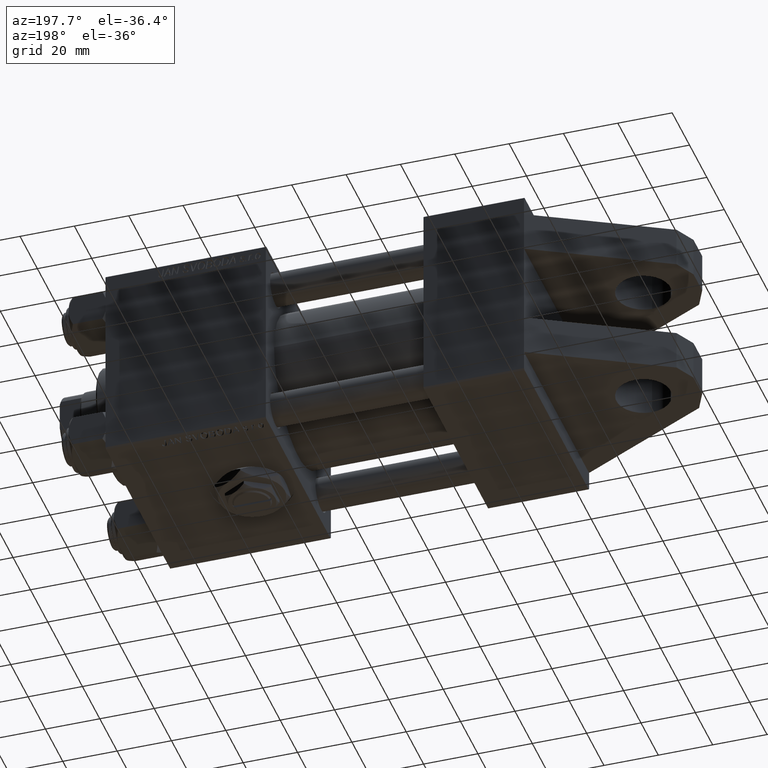
[diagram: clean part render]
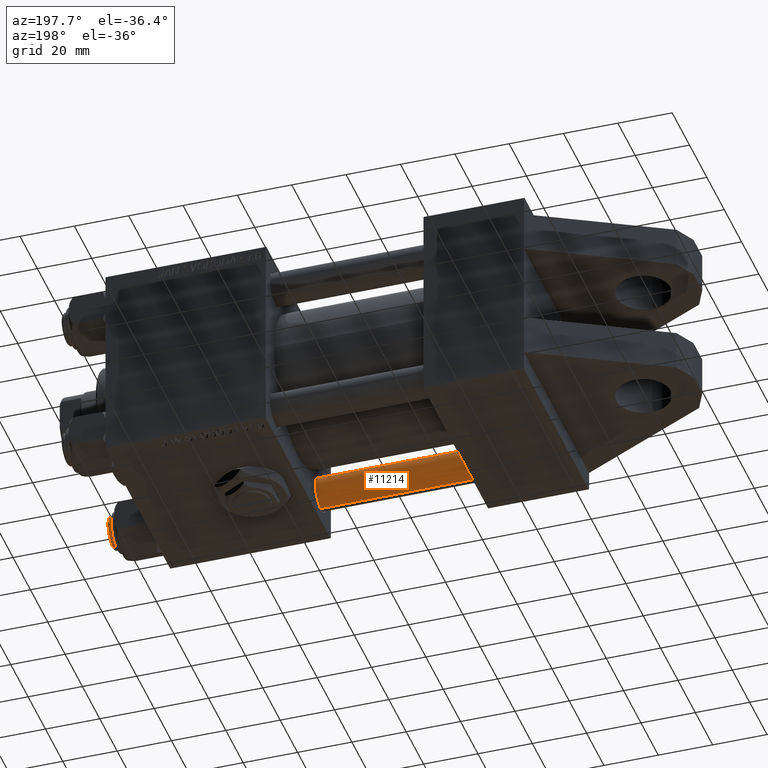
[diagram: same view with one face highlighted and labeled with its STEP entity id]
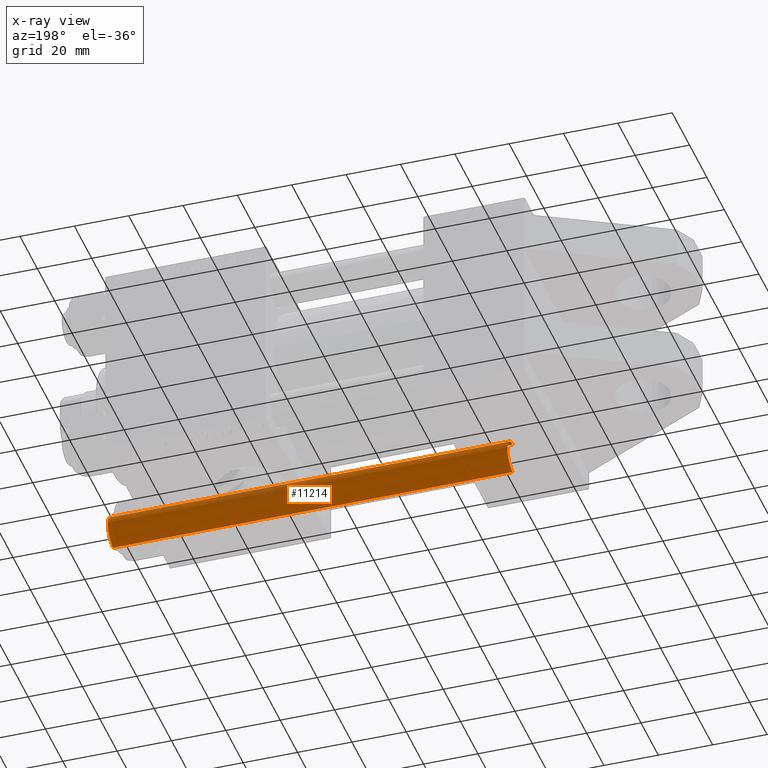
[diagram: x-ray of the same camera — body ghosted, the highlighted face saturated]
A machine part, auxiliary view. The second image highlights one B-rep face of the part: STEP entity #11214.
The next image is the same camera in x-ray: the body ghosted, the highlighted face saturated — about 6% of this face is hidden behind the body in this view.
In plain terms, the highlighted cylindrical surface (edge-blend (fillet) strip) has radius 6 mm, axis along (-1, -0, 0).
Its self-contained STEP definition (entity closure, byte-faithful):
#638 = DIRECTION ( 'NONE',  ( 0.000000000000000000, 0.000000000000000000, -1.000000000000000000 ) ) ;
#3277 = CIRCLE ( 'NONE', #14096, 6.000000000000000888 ) ;
#3455 = CYLINDRICAL_SURFACE ( 'NONE', #5653, 6.000000000000000888 ) ;
#5517 = AXIS2_PLACEMENT_3D ( 'NONE', #18379, #10571, #49289 ) ;
#5653 = AXIS2_PLACEMENT_3D ( 'NONE', #15664, #27633, #47854 ) ;
#6265 = VERTEX_POINT ( 'NONE', #37646 ) ;
#8441 = EDGE_LOOP ( 'NONE', ( #44671, #8922, #15339, #38552 ) ) ;
#8922 = ORIENTED_EDGE ( 'NONE', *, *, #46191, .T. ) ;
#10514 = CARTESIAN_POINT ( 'NONE',  ( -6.000000000000000888, 0.000000000000000000, 148.0000000000000000 ) ) ;
#10571 = DIRECTION ( 'NONE',  ( -0.000000000000000000, -0.000000000000000000, 1.000000000000000000 ) ) ;
#11214 = ADVANCED_FACE ( 'NONE', ( #27383 ), #3455, .T. ) ;
#14096 = AXIS2_PLACEMENT_3D ( 'NONE', #31337, #638, #35237 ) ;
#14666 = LINE ( 'NONE', #10514, #31448 ) ;
#14933 = VECTOR ( 'NONE', #28692, 1000.000000000000000 ) ;
#15339 = ORIENTED_EDGE ( 'NONE', *, *, #44063, .T. ) ;
#15664 = CARTESIAN_POINT ( 'NONE',  ( 0.000000000000000000, 0.000000000000000000, 148.0000000000000000 ) ) ;
#15893 = CARTESIAN_POINT ( 'NONE',  ( 6.000000000000000888, 7.347880794884120722E-16, 0.5000000000000281997 ) ) ;
#17571 = DIRECTION ( 'NONE',  ( -0.000000000000000000, -0.000000000000000000, -1.000000000000000000 ) ) ;
#18379 = CARTESIAN_POINT ( 'NONE',  ( 0.000000000000000000, 0.000000000000000000, 0.5000000000000281997 ) ) ;
#20631 = LINE ( 'NONE', #48396, #14933 ) ;
#22134 = CIRCLE ( 'NONE', #5517, 6.000000000000000888 ) ;
#25603 = VERTEX_POINT ( 'NONE', #43632 ) ;
#27383 = FACE_OUTER_BOUND ( 'NONE', #8441, .T. ) ;
#27633 = DIRECTION ( 'NONE',  ( -0.000000000000000000, -0.000000000000000000, -1.000000000000000000 ) ) ;
#28692 = DIRECTION ( 'NONE',  ( -0.000000000000000000, -0.000000000000000000, -1.000000000000000000 ) ) ;
#31337 = CARTESIAN_POINT ( 'NONE',  ( 0.000000000000000000, 0.000000000000000000, 147.5000000000000000 ) ) ;
#31448 = VECTOR ( 'NONE', #17571, 1000.000000000000000 ) ;
#32552 = EDGE_CURVE ( 'NONE', #36465, #45519, #22134, .T. ) ;
#35237 = DIRECTION ( 'NONE',  ( 1.000000000000000000, 0.000000000000000000, 0.000000000000000000 ) ) ;
#36465 = VERTEX_POINT ( 'NONE', #40601 ) ;
#37646 = CARTESIAN_POINT ( 'NONE',  ( 6.000000000000000888, 7.347880794884120722E-16, 147.5000000000000000 ) ) ;
#38552 = ORIENTED_EDGE ( 'NONE', *, *, #32552, .T. ) ;
#40601 = CARTESIAN_POINT ( 'NONE',  ( -6.000000000000000888, 0.000000000000000000, 0.5000000000000281997 ) ) ;
#43632 = CARTESIAN_POINT ( 'NONE',  ( -6.000000000000000888, 0.000000000000000000, 147.5000000000000000 ) ) ;
#44063 = EDGE_CURVE ( 'NONE', #25603, #36465, #14666, .T. ) ;
#44671 = ORIENTED_EDGE ( 'NONE', *, *, #45418, .F. ) ;
#45418 = EDGE_CURVE ( 'NONE', #6265, #45519, #20631, .T. ) ;
#45519 = VERTEX_POINT ( 'NONE', #15893 ) ;
#46191 = EDGE_CURVE ( 'NONE', #6265, #25603, #3277, .T. ) ;
#47854 = DIRECTION ( 'NONE',  ( -1.000000000000000000, 0.000000000000000000, 0.000000000000000000 ) ) ;
#48396 = CARTESIAN_POINT ( 'NONE',  ( 6.000000000000000888, 7.347880794884120722E-16, 148.0000000000000000 ) ) ;
#49289 = DIRECTION ( 'NONE',  ( 1.000000000000000000, 0.000000000000000000, 0.000000000000000000 ) ) ;